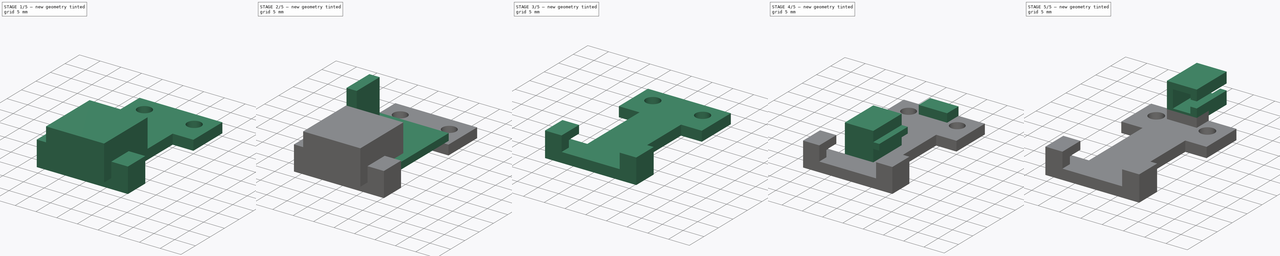
[diagram: build sequence overview — one tinted view per stage of 5, left to right]
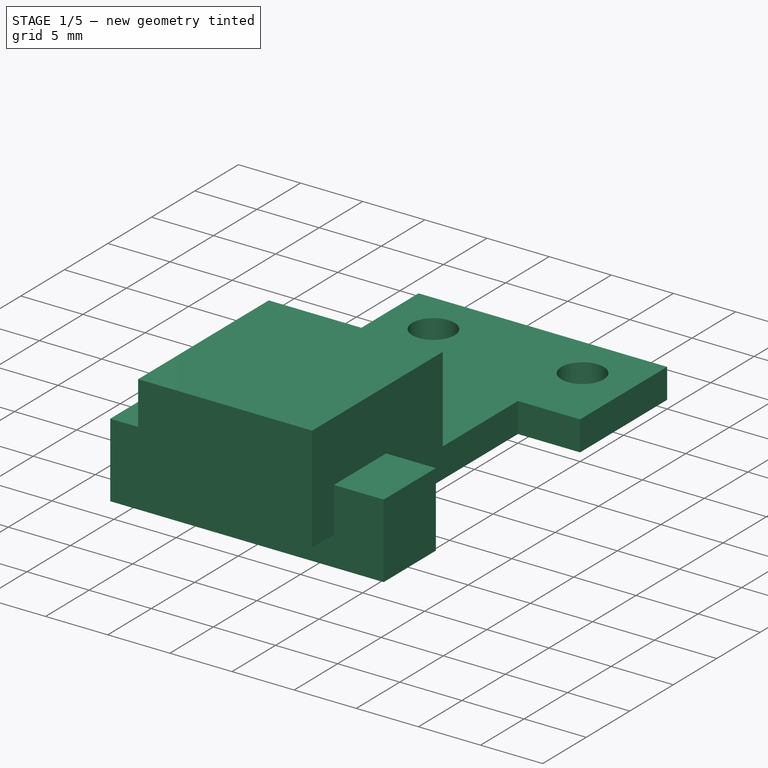
[diagram: stage 1 of 5 — iso view after this stage's code; geometry added in this stage tinted green]
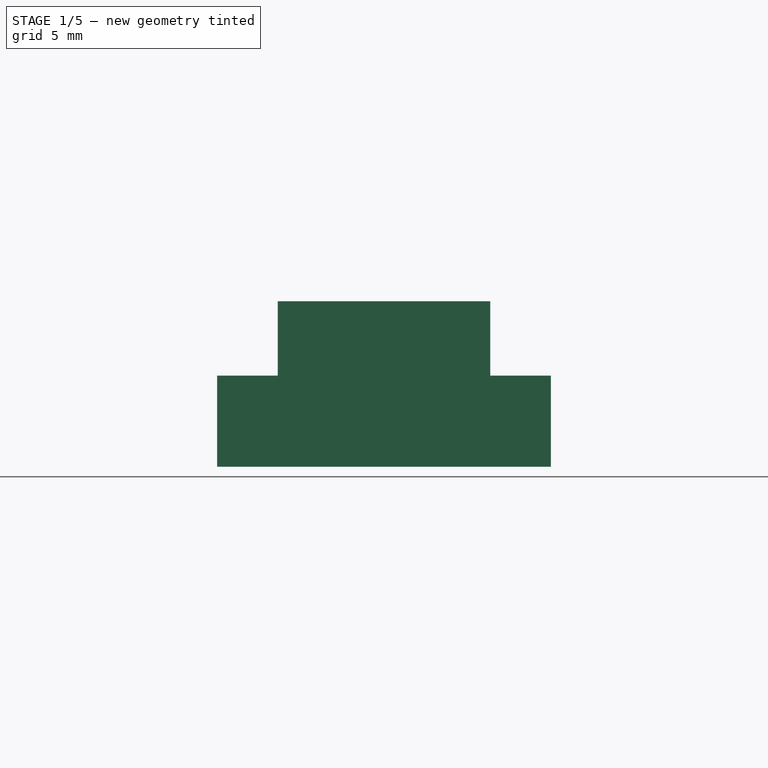
[diagram: stage 1 of 5 — front view after this stage's code; geometry added in this stage tinted green]
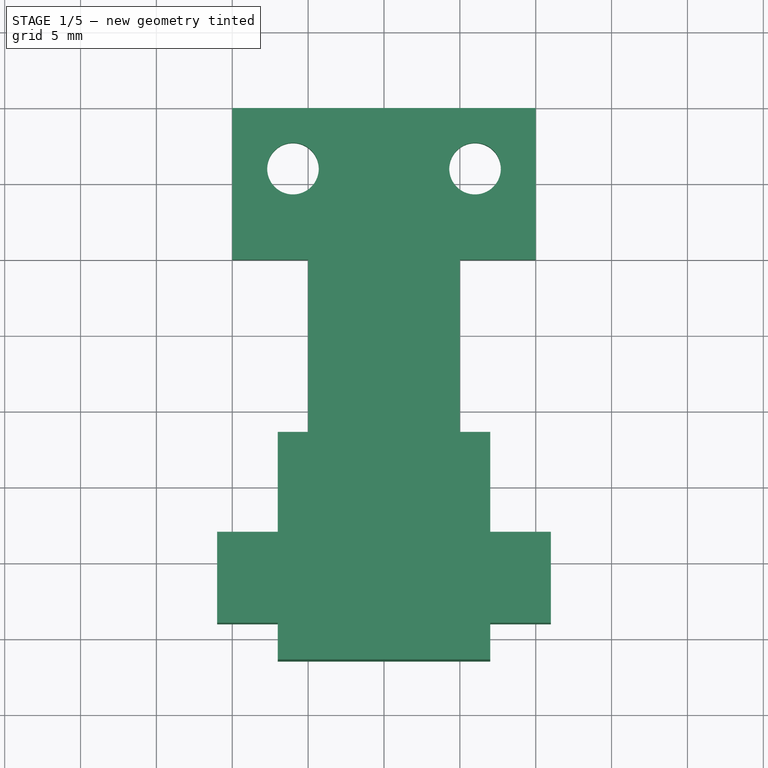
[diagram: stage 1 of 5 — top view after this stage's code; geometry added in this stage tinted green]
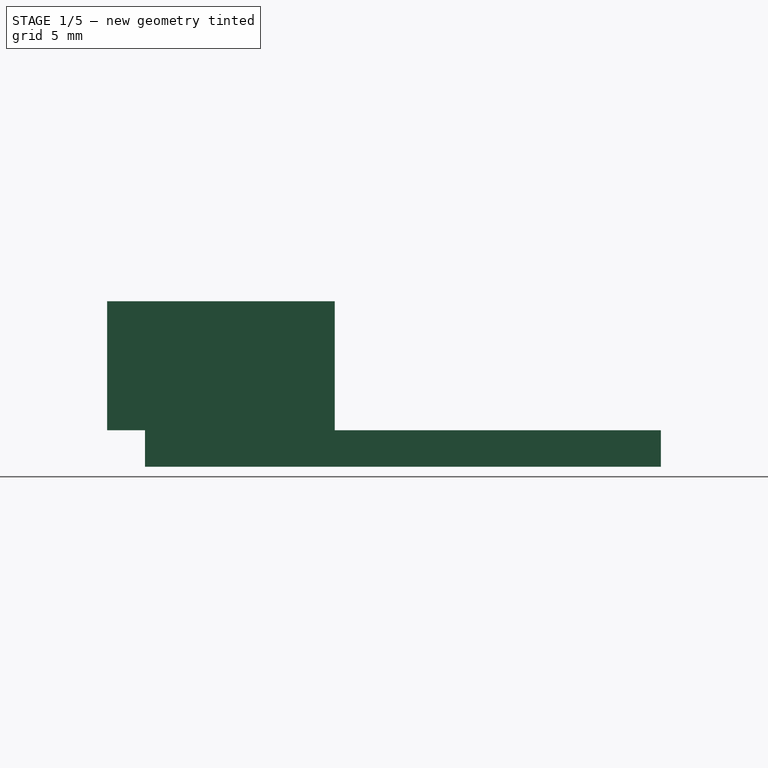
[diagram: stage 1 of 5 — right view after this stage's code; geometry added in this stage tinted green]
FCSTD DOCUMENT  (FreeCAD 0.18.4R)
Label: SimpleSerialBendLabs
License: All rights reserved
LicenseURL: http://en.wikipedia.org/wiki/All_rights_reserved
objects: Sketcher::SketchObject×6, Part::Extrusion×6, Part::MultiFuse×4, Part::Box×2, Part::Cut×2, Part::Mirroring×1, PartDesign::Body×1
note: 22 computed .brp shape members not serialized (recipe doc carries the construction recipe); baked Part::Feature solids carry a one-line shape summary decoded from their .brp

FEATURE [Part::Box] Box  label="Cube"
  AttacherType = Attacher::AttachEngine3D
  Height = 8.5
  Length = 14
  Placement = pos=(-7,-16.5,-0.1) rot=(0,0,1;0rad)
  Width = 15
FEATURE [Sketcher::SketchObject] Sketch002
  MapMode = 5
  Support = -> [XY_Plane]
  sketch-geometry (4):
    g0: LineSegment StartX=-11 StartY=-8 StartZ=0 EndX=11 EndY=-8 EndZ=0
    g1: LineSegment StartX=11 StartY=-8 StartZ=0 EndX=11 EndY=-14 EndZ=0
    g2: LineSegment StartX=11 StartY=-14 StartZ=0 EndX=-11 EndY=-14 EndZ=0
    g3: LineSegment StartX=-11 StartY=-14 StartZ=0 EndX=-11 EndY=-8 EndZ=0
  constraints (12):
    c: Coincident(g0,g1)
    c: Coincident(g1,g2)
    c: Coincident(g2,g3)
    c: Coincident(g3,g0)
    c: Horizontal(g0)
    c: Horizontal(g2)
    c: Vertical(g1)
    c: Vertical(g3)
    c: DistanceY(g0,g-1) = 8
    c: DistanceX(g-1,g0) = 11
    c: DistanceX(g0,g0) = 22
    c: DistanceY(g1,g1) = 6
FEATURE [Part::Extrusion] Extrude002
  Base = -> Sketch002
  Dir = (0,0,1)
  DirMode = 2
  FaceMakerClass = Part::FaceMakerBullseye
  LengthFwd = 6
  LengthRev = 0
  Placement = pos=(0,0,-2.5) rot=(0,0,1;0rad)
  Solid = true
  Symmetric = false
FEATURE [Sketcher::SketchObject] Sketch003
  MapMode = 5
  Support = -> [XY_Plane]
  sketch-geometry (10):
    g0: LineSegment StartX=-10 StartY=20 StartZ=0 EndX=10 EndY=20 EndZ=0
    g1: LineSegment StartX=5 StartY=-8 StartZ=0 EndX=-5 EndY=-8 EndZ=0
    g2: LineSegment StartX=-10 StartY=20 StartZ=0 EndX=-10 EndY=10 EndZ=0
    g3: LineSegment StartX=-10 StartY=10 StartZ=0 EndX=-5 EndY=10 EndZ=0
    g4: LineSegment StartX=-5 StartY=10 StartZ=0 EndX=-5 EndY=-8 EndZ=0
    g5: LineSegment StartX=10 StartY=20 StartZ=0 EndX=10 EndY=10 EndZ=0
    g6: LineSegment StartX=10 StartY=10 StartZ=0 EndX=5 EndY=10 EndZ=0
    g7: LineSegment StartX=5 StartY=10 StartZ=0 EndX=5 EndY=-8 EndZ=0
    g8: Circle CenterX=-6 CenterY=16 CenterZ=0 NormalX=0 NormalY=0 NormalZ=1 AngleXU=0 Radius=1.7
    g9: Circle CenterX=6 CenterY=16 CenterZ=0 NormalX=0 NormalY=0 NormalZ=1 AngleXU=0 Radius=1.7
  constraints (30):
    c: Horizontal(g0)
    c: Horizontal(g1)
    c: DistanceY(g1,g-1) = 8
    c: DistanceY(g1,g0) = 28
    c: DistanceX(g1,g1) = 10
    c: DistanceX(g-1,g0) = 10
    c: Coincident(g2,g3)
    c: Coincident(g3,g4)
    c: Coincident(g4,g1)
    c: Vertical(g4)
    c: Horizontal(g3)
    c: Vertical(g2)
    c: Coincident(g2,g0)
    c: Coincident(g5,g6)
    c: Coincident(g6,g7)
    c: Coincident(g7,g1)
    c: Vertical(g7)
    c: Horizontal(g6)
    c: Vertical(g5)
    c: Coincident(g0,g5)
    c: DistanceX(g0,g0) = 20
    c: DistanceY(g5,g5) = 10
    c: DistanceY(g2,g2) = 10
    c: DistanceX(g-1,g1) = 5
    c: Radius(g8) = 1.7
    c: DistanceX(g8,g3) = 1
    c: DistanceY(g2,g8) = 6
    c: DistanceY(g6,g9) = 6
    c: DistanceX(g6,g9) = 1
    c: Radius(g9) = 1.7
FEATURE [Sketcher::SketchObject] Sketch004
  MapMode = 5
  Placement = pos=(0,0,0) rot=(1,0,0;1.5708rad)
  Support = -> [XZ_Plane]
  sketch-geometry (8):
    g0: LineSegment StartX=-2.1 StartY=2.5 StartZ=0 EndX=2 EndY=2.5 EndZ=0
    g1: LineSegment StartX=2.05 StartY=6.6 StartZ=0 EndX=-2.1 EndY=6.6 EndZ=0
    g2: LineSegment StartX=-2.1 StartY=6.6 StartZ=0 EndX=-2.1 EndY=2.5 EndZ=0
    g3: LineSegment StartX=2.05 StartY=6.6 StartZ=0 EndX=2.05 EndY=5.5 EndZ=0
    g4: LineSegment StartX=2.05 StartY=5.5 StartZ=0 EndX=5 EndY=5.5 EndZ=0
    g5: LineSegment StartX=5 StartY=5.5 StartZ=0 EndX=5 EndY=4 EndZ=0
    g6: LineSegment StartX=5 StartY=4 StartZ=0 EndX=2 EndY=4 EndZ=0
    g7: LineSegment StartX=2 StartY=4 StartZ=0 EndX=2 EndY=2.5 EndZ=0
  constraints (24):
    c: Coincident(g1,g2)
    c: Coincident(g2,g0)
    c: Horizontal(g0)
    c: Horizontal(g1)
    c: Vertical(g2)
    c: DistanceX(g0,g0) = 4.1
    c: DistanceY(g0,g1) = 4.1
    c: DistanceY(g-1,g0) = 2.5
    c: DistanceX(g-1,g1) = 2.05
    c: Coincident(g3,g4)
    c: Coincident(g4,g5)
    c: Coincident(g5,g6)
    c: Coincident(g6,g7)
    c: Coincident(g3,g1)
    c: Coincident(g7,g0)
    c: Vertical(g7)
    c: Horizontal(g6)
    c: Vertical(g5)
    c: Horizontal(g4)
    c: Vertical(g3)
    c: DistanceX(g-1,g0) = 2
    c: DistanceX(g6,g6) = 3
    c: DistanceY(g5,g5) = 1.5
    c: DistanceY(g7,g7) = 1.5
FEATURE [Sketcher::SketchObject] Sketch005
  MapMode = 5
  Placement = pos=(0,0,0) rot=(1,0,0;1.5708rad)
  Support = -> [XZ_Plane]
  sketch-geometry (4):
    g0: LineSegment StartX=-3.5 StartY=1 StartZ=0 EndX=3.5 EndY=1 EndZ=0
    g1: LineSegment StartX=3.5 StartY=8 StartZ=0 EndX=-3.5 EndY=8 EndZ=0
    g2: LineSegment StartX=-3.5 StartY=8 StartZ=0 EndX=-3.5 EndY=1 EndZ=0
    g3: LineSegment StartX=3.5 StartY=8 StartZ=0 EndX=3.5 EndY=1 EndZ=0
  constraints (12):
    c: Coincident(g1,g2)
    c: Coincident(g2,g0)
    c: Horizontal(g0)
    c: Horizontal(g1)
    c: Vertical(g2)
    c: DistanceX(g0,g0) = 7
    c: DistanceY(g0,g1) = 7
    c: DistanceY(g-1,g0) = 1
    c: DistanceX(g-1,g1) = 3.5
    c: Coincident(g3,g0)
    c: Vertical(g3)
    c: Coincident(g1,g3)
FEATURE [PartDesign::Body] Body
  Group = -> [Sketch,Sketch001,Sketch002,Sketch003,Sketch004,Sketch005]
  Origin = -> Origin
FEATURE [Part::Extrusion] Extrude003
  Base = -> Sketch003
  Dir = (0,0,1)
  DirMode = 2
  FaceMakerClass = Part::FaceMakerBullseye
  LengthFwd = 2.4
  LengthRev = 0
  Placement = pos=(0,0,-0.1) rot=(0,0,1;0rad)
  Reversed = true
  Solid = true
  Symmetric = false
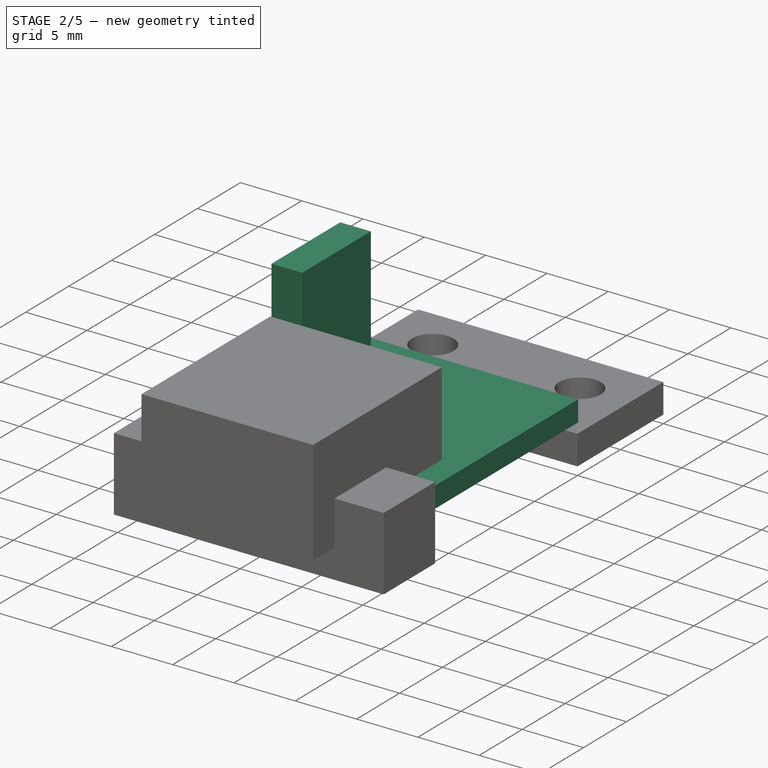
[diagram: stage 2 of 5 — iso view after this stage's code; geometry added in this stage tinted green]
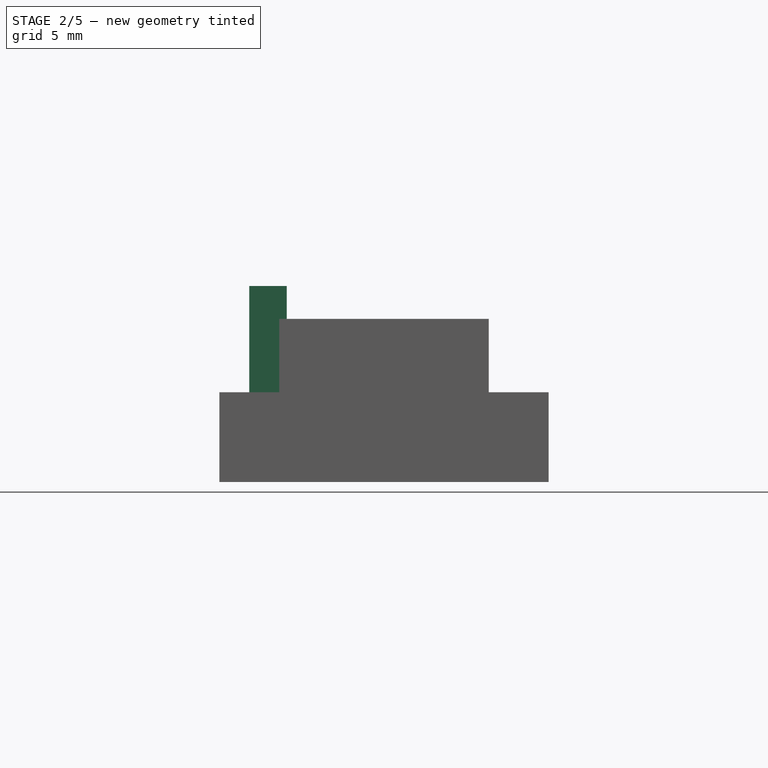
[diagram: stage 2 of 5 — front view after this stage's code; geometry added in this stage tinted green]
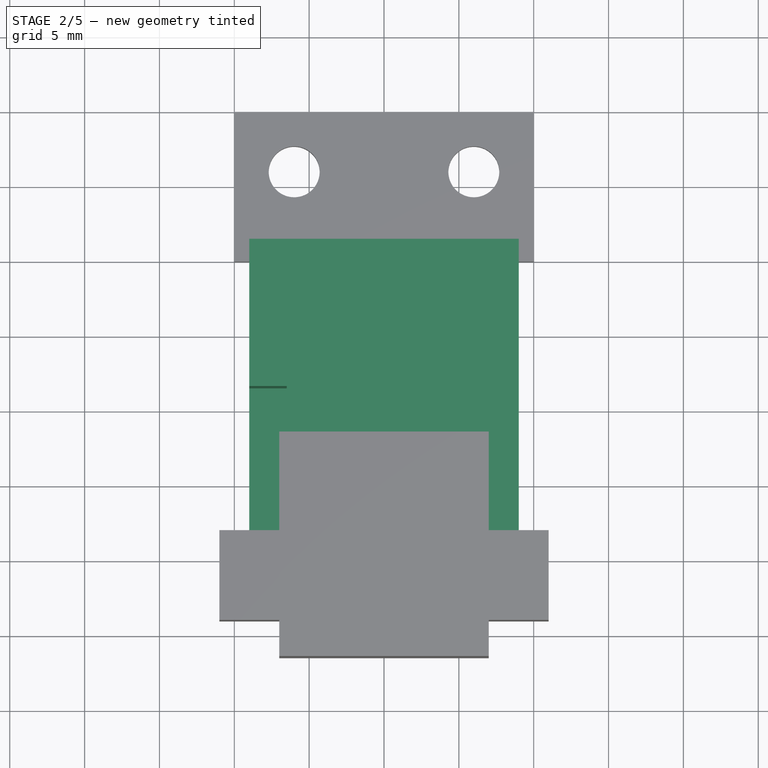
[diagram: stage 2 of 5 — top view after this stage's code; geometry added in this stage tinted green]
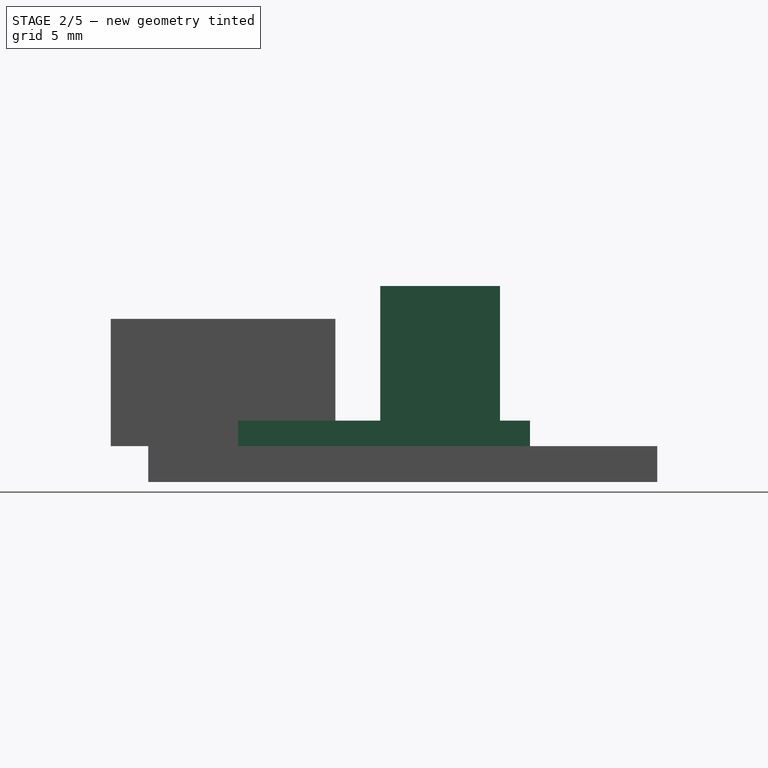
[diagram: stage 2 of 5 — right view after this stage's code; geometry added in this stage tinted green]
FEATURE [Sketcher::SketchObject] Sketch
  MapMode = 5
  Support = -> [XY_Plane]
  sketch-geometry (4):
    g0: LineSegment StartX=-9 StartY=11.5 StartZ=0 EndX=9 EndY=11.5 EndZ=0
    g1: LineSegment StartX=9 StartY=11.5 StartZ=0 EndX=9 EndY=-11.5 EndZ=0
    g2: LineSegment StartX=9 StartY=-11.5 StartZ=0 EndX=-9 EndY=-11.5 EndZ=0
    g3: LineSegment StartX=-9 StartY=-11.5 StartZ=0 EndX=-9 EndY=11.5 EndZ=0
  constraints (12):
    c: Coincident(g0,g1)
    c: Coincident(g1,g2)
    c: Coincident(g2,g3)
    c: Coincident(g3,g0)
    c: Horizontal(g0)
    c: Horizontal(g2)
    c: Vertical(g1)
    c: Vertical(g3)
    c: DistanceY(g1,g1) = 23
    c: DistanceX(g0,g0) = 18
    c: DistanceX(g-1,g0) = 9
    c: DistanceY(g1,g-1) = 11.5
FEATURE [Part::Extrusion] Extrude  label="PCB"
  Base = -> Sketch
  Dir = (0,0,1)
  DirMode = 2
  FaceMakerClass = Part::FaceMakerBullseye
  LengthFwd = 1.7
  LengthRev = 0
  Placement = pos=(0,0,-0.1) rot=(0,0,1;0rad)
  Solid = true
  Symmetric = false
FEATURE [Sketcher::SketchObject] Sketch001
  MapMode = 5
  Support = -> [XY_Plane]
  sketch-geometry (4):
    g0: LineSegment StartX=6.5 StartY=9.5 StartZ=0 EndX=9 EndY=9.5 EndZ=0
    g1: LineSegment StartX=9 StartY=9.5 StartZ=0 EndX=9 EndY=1.5 EndZ=0
    g2: LineSegment StartX=9 StartY=1.5 StartZ=0 EndX=6.5 EndY=1.5 EndZ=0
    g3: LineSegment StartX=6.5 StartY=1.5 StartZ=0 EndX=6.5 EndY=9.5 EndZ=0
  constraints (12):
    c: Coincident(g0,g1)
    c: Coincident(g1,g2)
    c: Coincident(g2,g3)
    c: Coincident(g3,g0)
    c: Horizontal(g0)
    c: Horizontal(g2)
    c: Vertical(g1)
    c: Vertical(g3)
    c: DistanceX(g-1,g0) = 9
    c: DistanceX(g0,g0) = 2.5
    c: DistanceY(g1,g1) = 8
    c: DistanceY(g-1,g0) = 9.5
FEATURE [Part::Extrusion] Extrude001
  Base = -> Sketch001
  Dir = (0,0,1)
  DirMode = 2
  FaceMakerClass = Part::FaceMakerBullseye
  LengthFwd = 9
  LengthRev = 0
  Placement = pos=(0,0,1.6) rot=(0,0,1;0rad)
  Solid = true
  Symmetric = false
FEATURE [Part::Mirroring] Part__Mirroring  label="Extrude001 (Mirror #1)"
  Base = (0,0,0)
  Normal = (1,0,0)
  Source = -> Extrude001
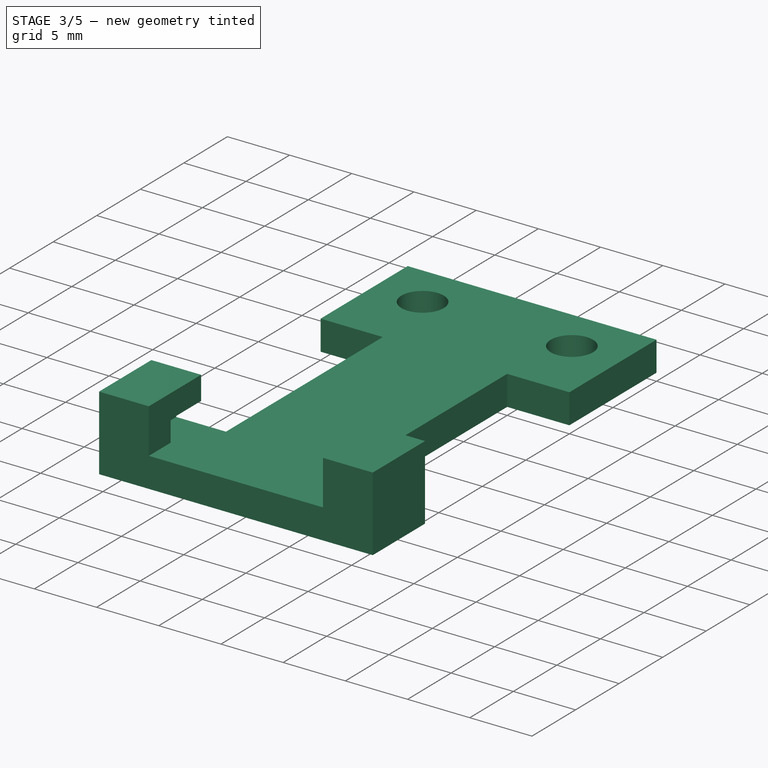
[diagram: stage 3 of 5 — iso view after this stage's code; geometry added in this stage tinted green]
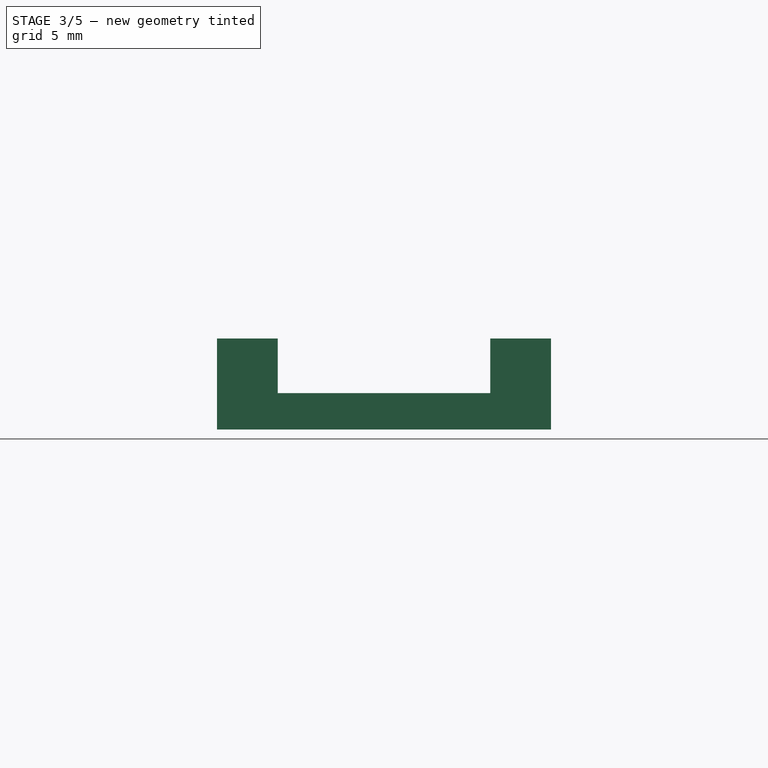
[diagram: stage 3 of 5 — front view after this stage's code; geometry added in this stage tinted green]
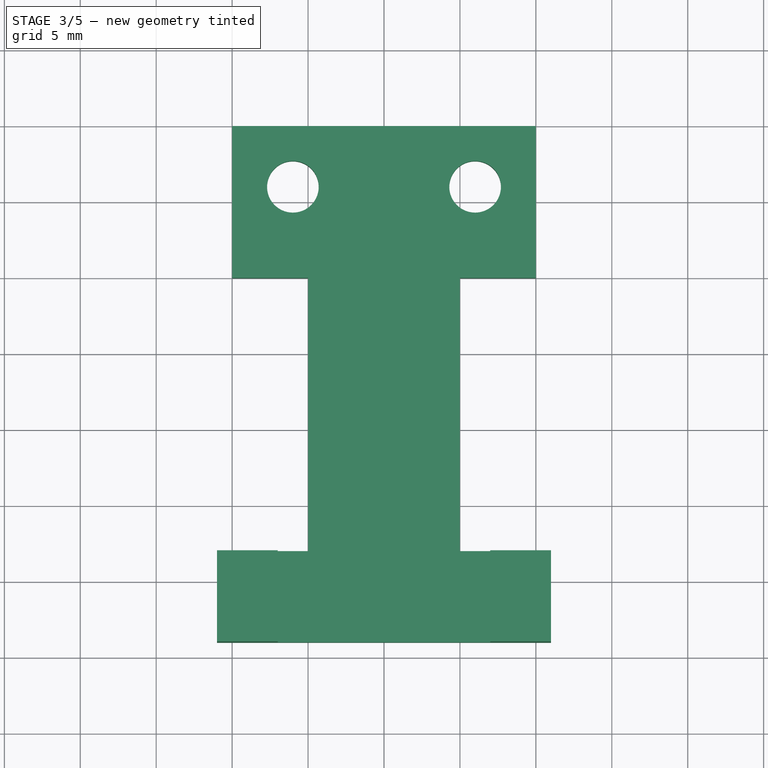
[diagram: stage 3 of 5 — top view after this stage's code; geometry added in this stage tinted green]
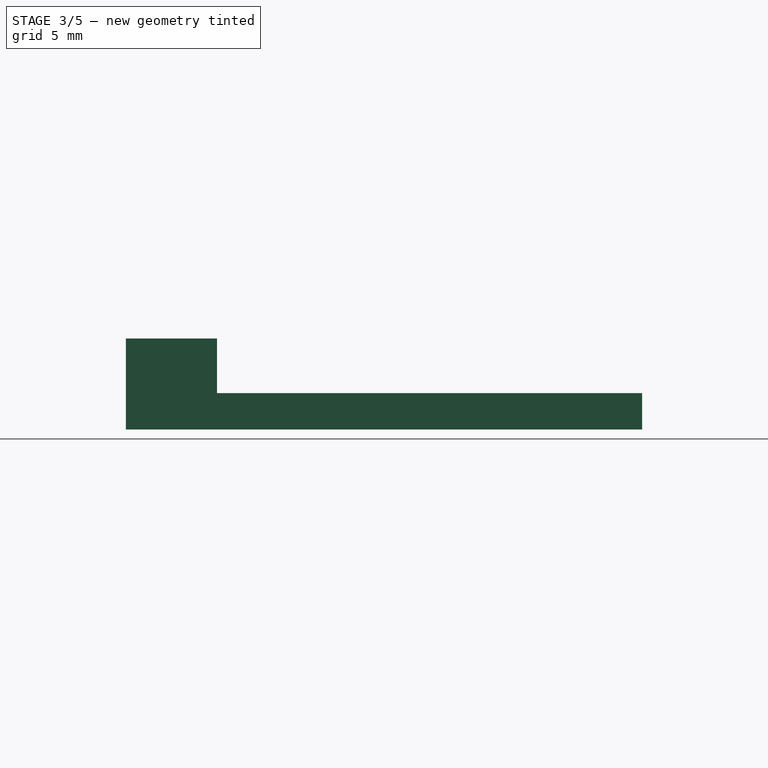
[diagram: stage 3 of 5 — right view after this stage's code; geometry added in this stage tinted green]
FEATURE [Part::MultiFuse] Fusion
  Shapes = -> [Extrude,Part__Mirroring,Extrude001,Box]
FEATURE [Part::Cut] Cut
  Base = -> Extrude002
  Tool = -> Fusion
FEATURE [Part::MultiFuse] Fusion003
  Shapes = -> [Cut,Extrude003]
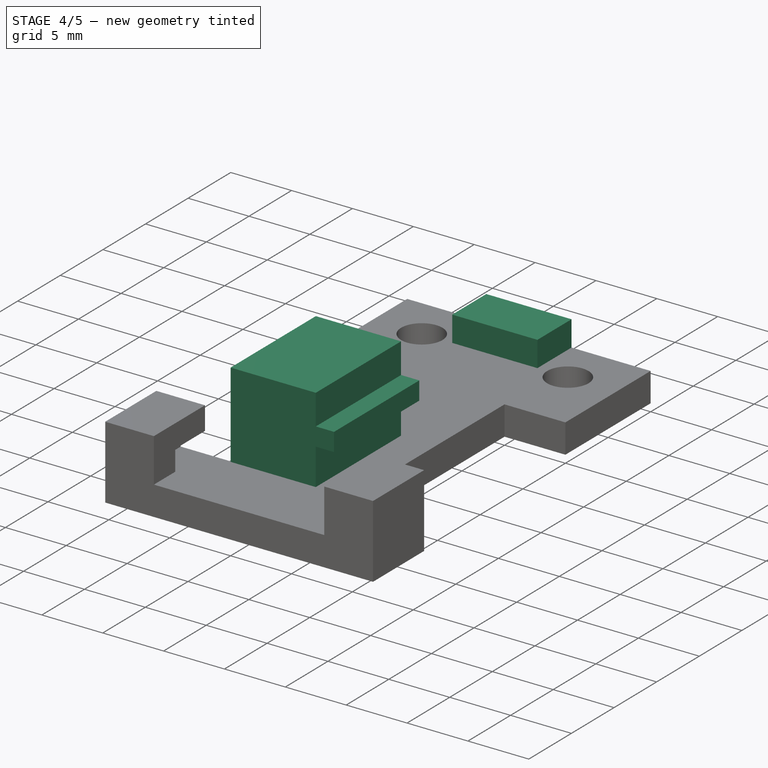
[diagram: stage 4 of 5 — iso view after this stage's code; geometry added in this stage tinted green]
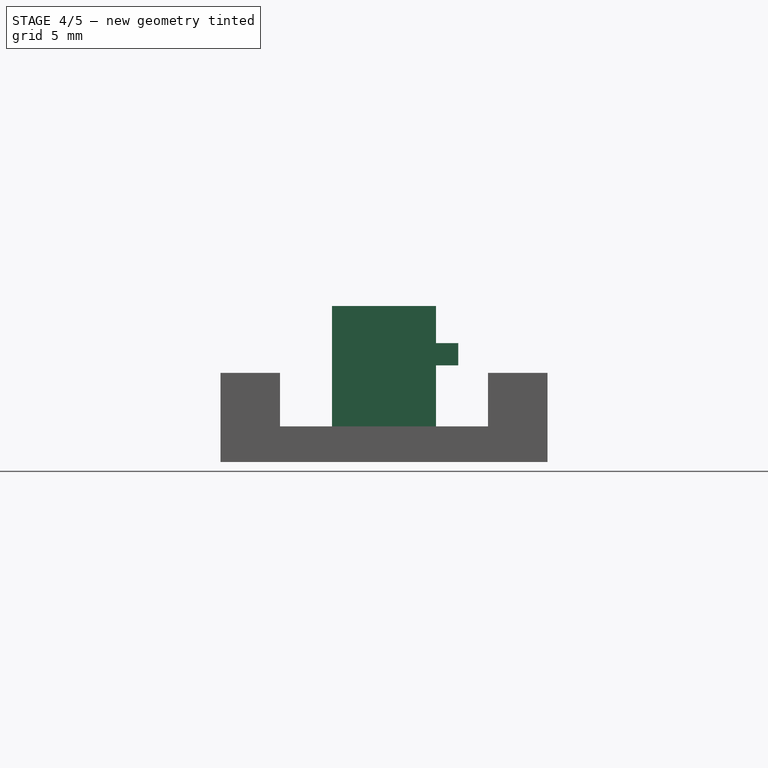
[diagram: stage 4 of 5 — front view after this stage's code; geometry added in this stage tinted green]
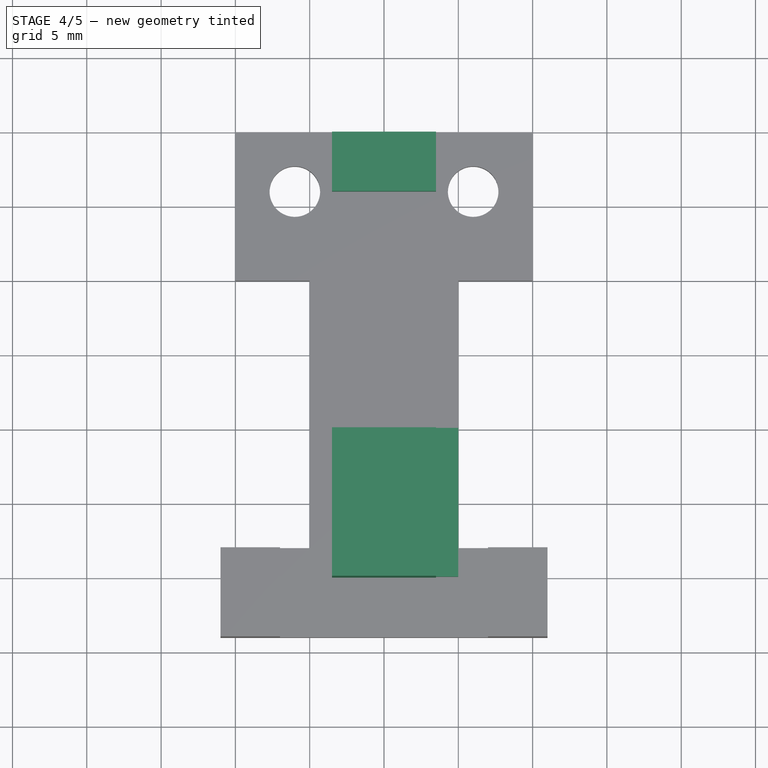
[diagram: stage 4 of 5 — top view after this stage's code; geometry added in this stage tinted green]
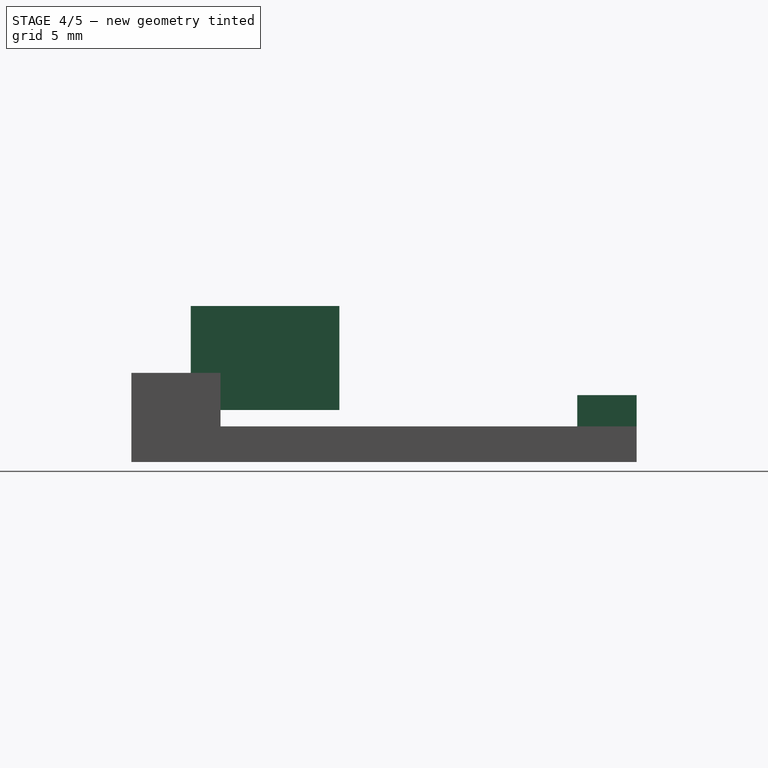
[diagram: stage 4 of 5 — right view after this stage's code; geometry added in this stage tinted green]
FEATURE [Part::Extrusion] Extrude004
  Base = -> Sketch004
  Dir = (0,-1,-2e-16)
  DirMode = 2
  FaceMakerClass = Part::FaceMakerBullseye
  LengthFwd = 10
  LengthRev = 0
  Solid = true
  Symmetric = false
FEATURE [Part::Extrusion] Extrude005
  Base = -> Sketch005
  Dir = (0,-1,-2e-16)
  DirMode = 2
  FaceMakerClass = Part::FaceMakerBullseye
  LengthFwd = 10
  LengthRev = 0
  Solid = true
  Symmetric = false
FEATURE [Part::Box] Box001  label="Cube001"
  AttacherType = Attacher::AttachEngine3D
  Height = 3
  Length = 7
  Placement = pos=(-3.5,16,-1) rot=(0,0,1;0rad)
  Width = 4
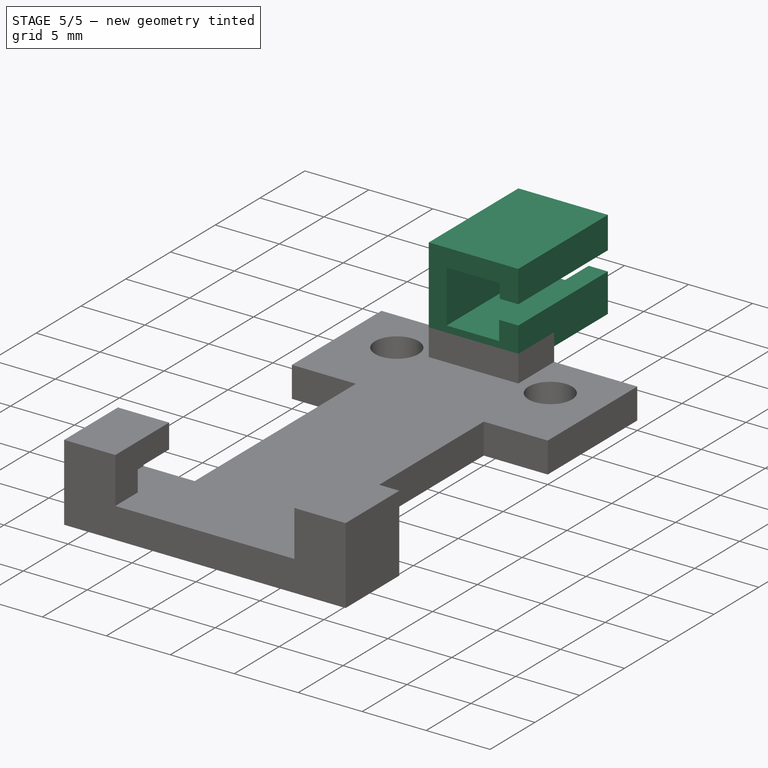
[diagram: stage 5 of 5 — iso view after this stage's code; geometry added in this stage tinted green]
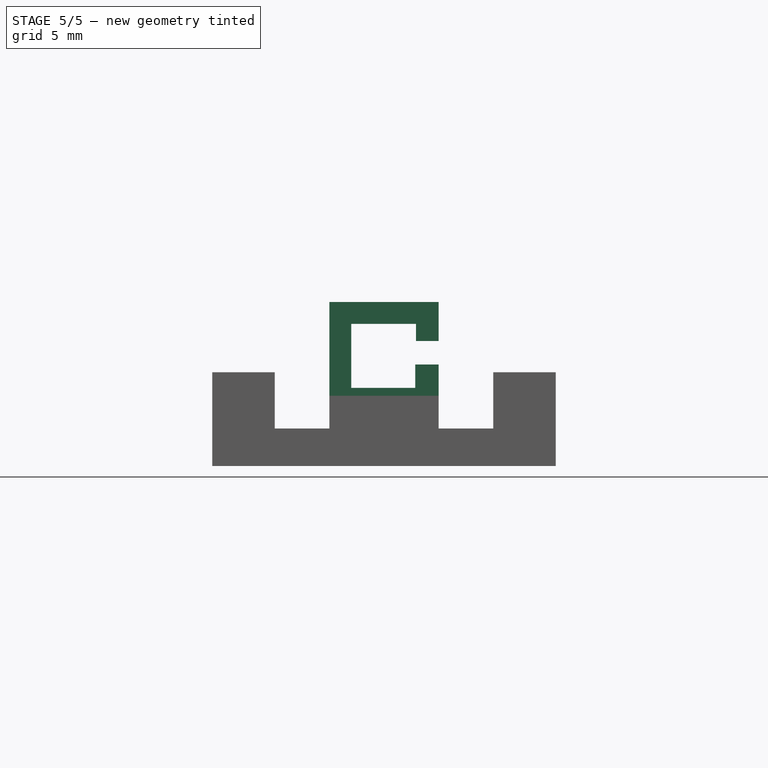
[diagram: stage 5 of 5 — front view after this stage's code; geometry added in this stage tinted green]
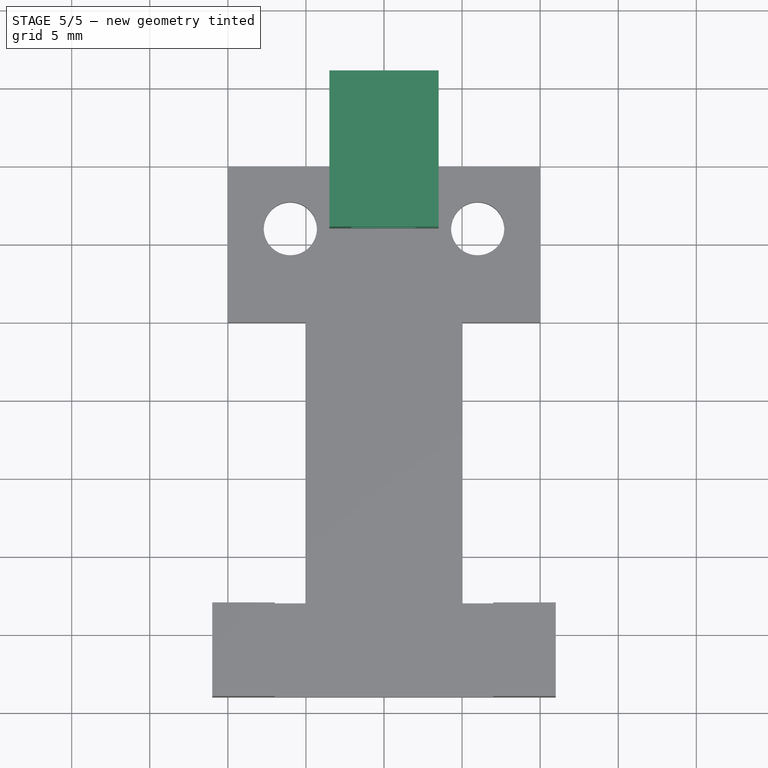
[diagram: stage 5 of 5 — top view after this stage's code; geometry added in this stage tinted green]
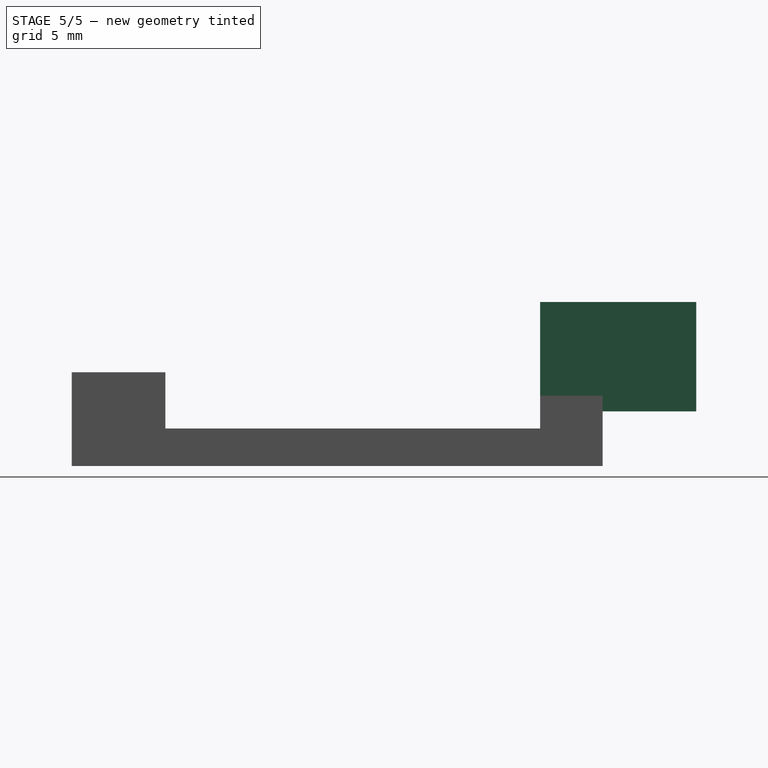
[diagram: stage 5 of 5 — right view after this stage's code; geometry added in this stage tinted green]
FEATURE [Part::Cut] Cut001
  Base = -> Extrude005
  Placement = pos=(0,26,0) rot=(0,0,1;0rad)
  Tool = -> Extrude004
FEATURE [Part::MultiFuse] Fusion001
  Shapes = -> [Cut001,Extrude003]
FEATURE [Part::MultiFuse] Fusion002
  Shapes = -> [Fusion001,Extrude003,Box001,Cut]
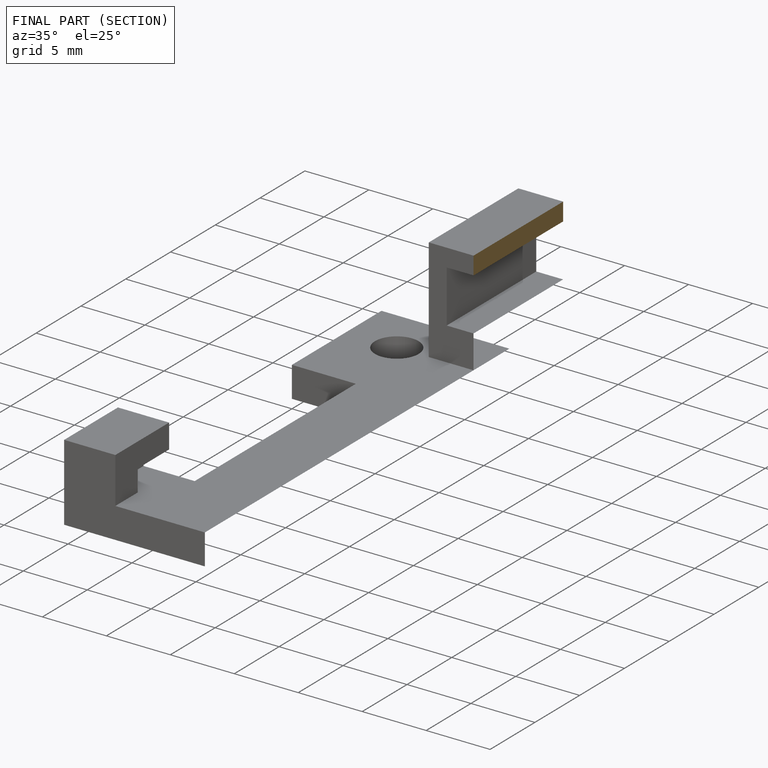
[diagram: finished part — half-section view (interior)]
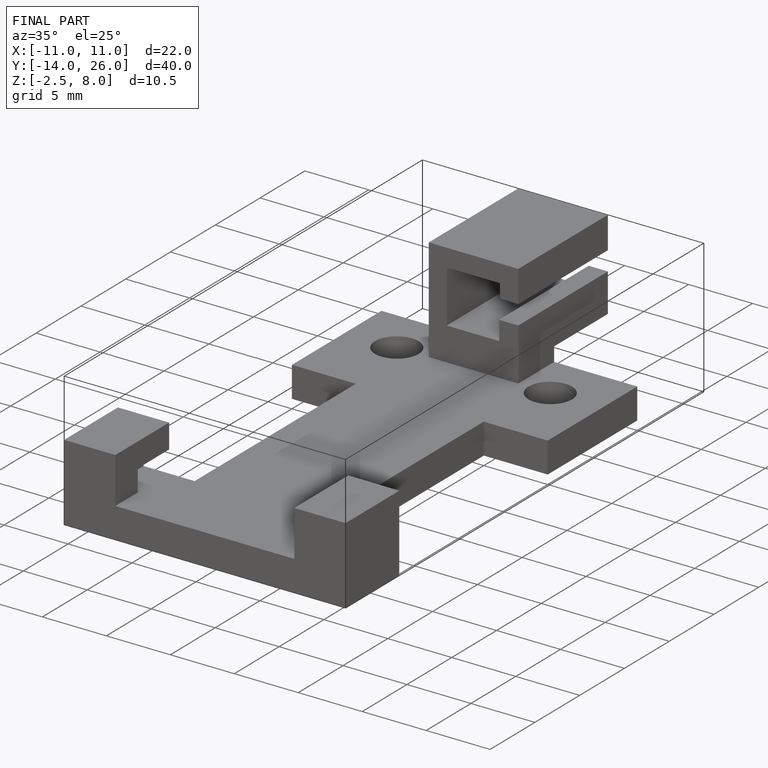
[diagram: finished part — iso view with bounding-box wireframe]
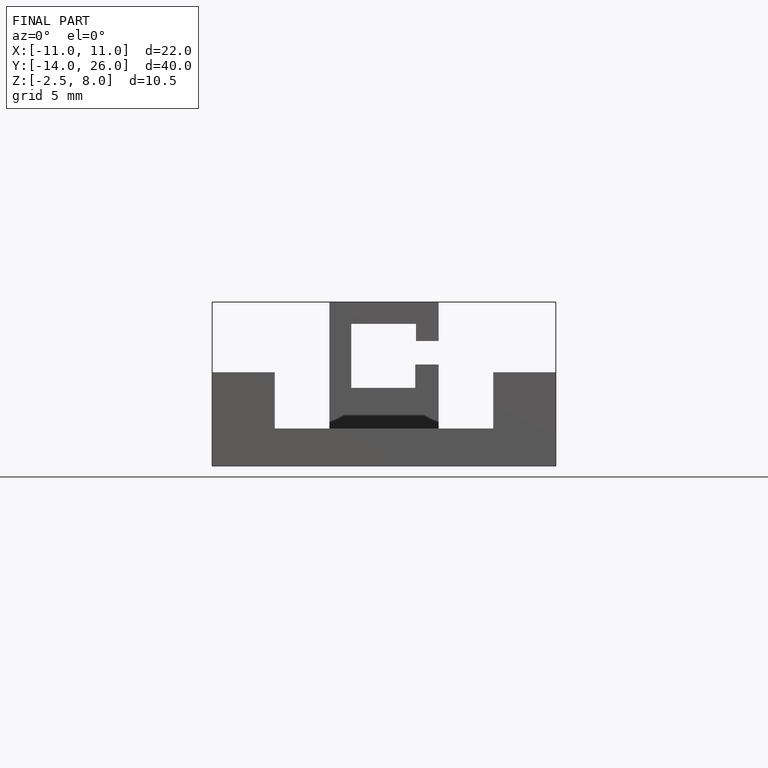
[diagram: finished part — front view with bounding-box wireframe]
